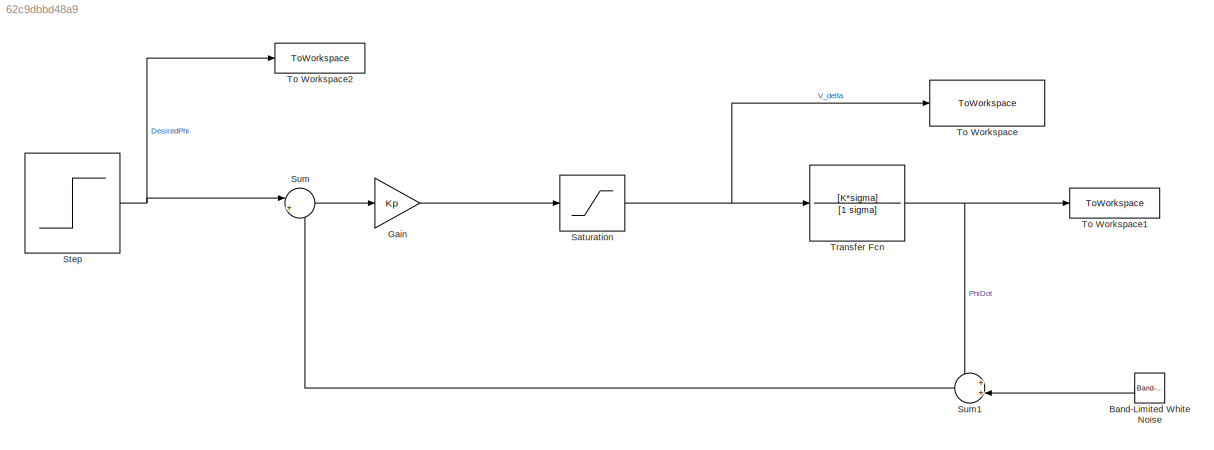
MODEL slx_62c9dbbd48a9
KIND model
CONFIG AbsTol = auto
CONFIG EnableMultiTasking = off
CONFIG FixedStep = auto
CONFIG MaxStep = auto
CONFIG MinStep = auto
CONFIG RelTol = 1e-3
CONFIG SampleTimeConstraint = Unconstrained
CONFIG SolverName = VariableStepAuto
CONFIG StartTime = 0.0
CONFIG StopTime = 7
BLOCK [Reference] Band-Limited White Noise  REF=simulink/Sources/Band-Limited
White Noise
  SourceBlock = simulink/Sources/Band-Limited\nWhite Noise
  SourceType = Band-Limited White Noise.
BLOCK [Gain] Gain
  Gain = Kp
BLOCK [Saturate] Saturation
  LowerLimit = -16.8
  UpperLimit = 16.8
BLOCK [Step] Step
  After = 4.4
  SampleTime = 0
  Time = 2
BLOCK [Sum] Sum
  Inputs = |+-
BLOCK [Sum] Sum1
  Inputs = ++|
BLOCK [ToWorkspace] To Workspace
  FixptAsFi = on
  MaxDataPoints = inf
  SampleTime = -1
  SaveFormat = Timeseries
  VariableName = V_delta
BLOCK [ToWorkspace] To Workspace1
  FixptAsFi = on
  MaxDataPoints = inf
  SampleTime = -1
  SaveFormat = Timeseries
  VariableName = PhiDot
BLOCK [ToWorkspace] To Workspace2
  FixptAsFi = on
  MaxDataPoints = inf
  SampleTime = -1
  SaveFormat = Timeseries
  VariableName = DesiredPhi
BLOCK [TransferFcn] Transfer Fcn
  Denominator = [1 sigma]
  Numerator = [K*sigma]
LINE Band-Limited White Noise:1 -> Sum1:2
LINE Gain:1 -> Saturation:1
NET Saturation:1 -> To Workspace:1, Transfer Fcn:1
NET Step:1 -> Sum:1, To Workspace2:1
LINE Sum1:1 -> Sum:2
LINE Sum:1 -> Gain:1
NET Transfer Fcn:1 -> Sum1:1, To Workspace1:1
note: NET lines group one-source signal fan-out (src -> all destinations, sorted); 1:1 wires keep LINE
